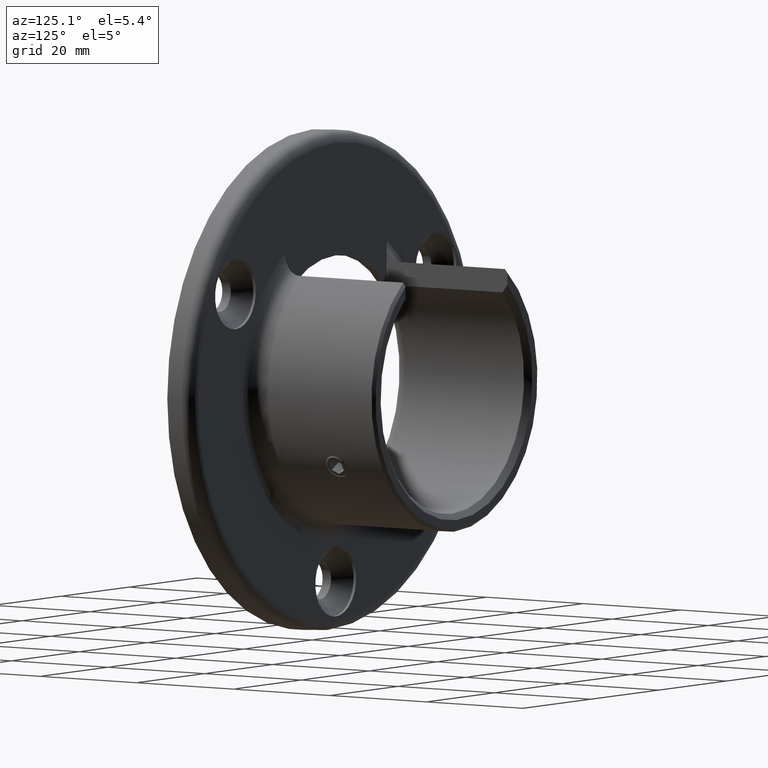
[diagram: clean part render]
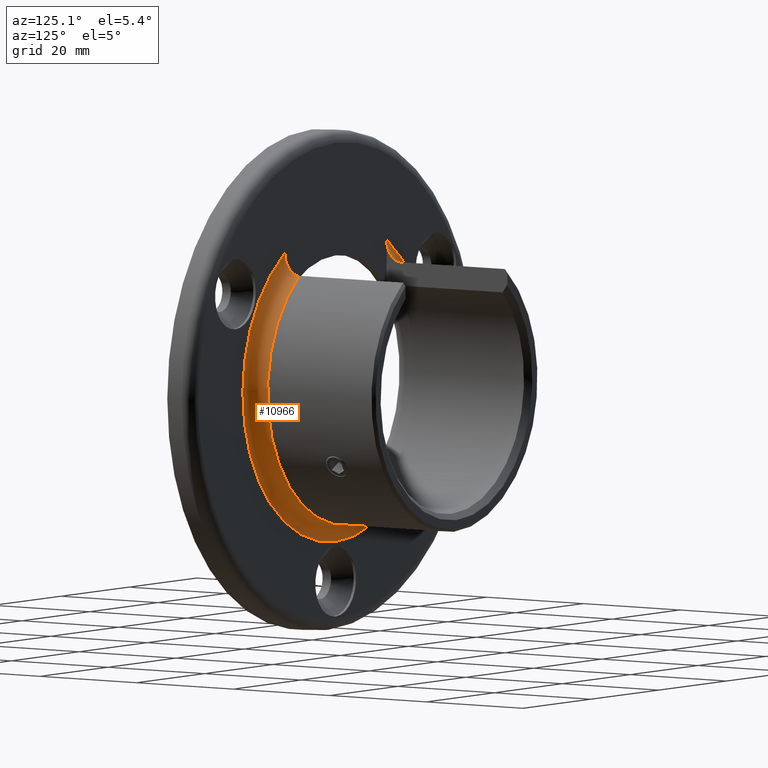
[diagram: same view with one face highlighted and labeled with its STEP entity id]
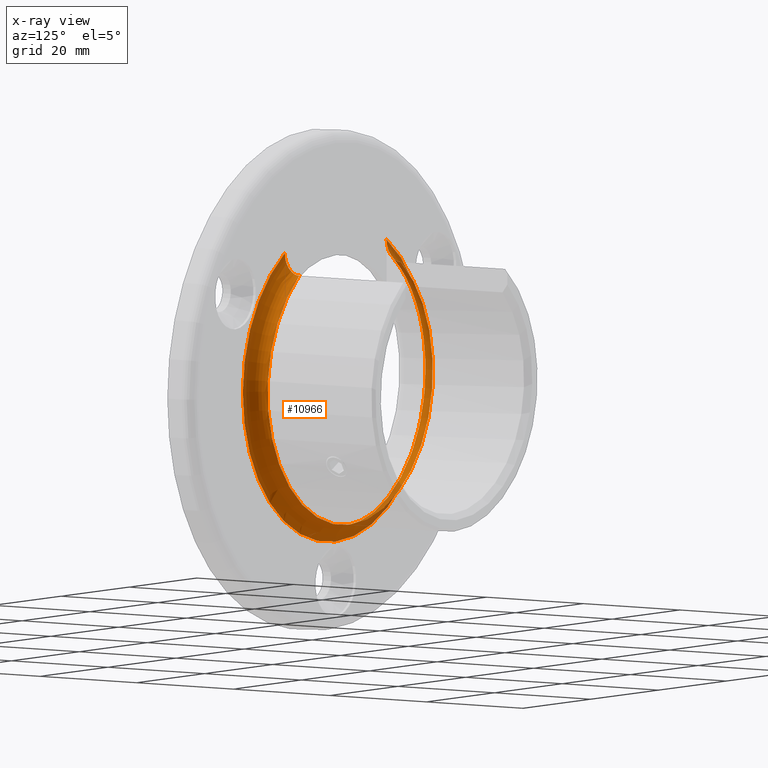
[diagram: x-ray of the same camera — body ghosted, the highlighted face saturated]
A machine part, auxiliary view. The second image highlights one B-rep face of the part: STEP entity #10966.
The next image is the same camera in x-ray: the body ghosted, the highlighted face saturated — about 4% of this face is hidden behind the body in this view.
In plain terms, the highlighted toroidal blend (fillet) surface has major radius 27.35 mm and minor (blend) radius 3 mm.
Its self-contained STEP definition (entity closure, byte-faithful):
#460 = CARTESIAN_POINT ( 'NONE',  ( 0.000000000000000000, 8.000000000000000000, 0.000000000000000000 ) ) ;
#517 = CARTESIAN_POINT ( 'NONE',  ( 15.00000000000000533, 5.908942776005998709, 20.23767699112590535 ) ) ;
#957 = AXIS2_PLACEMENT_3D ( 'NONE', #460, #2016, #2078 ) ;
#1126 = EDGE_CURVE ( 'NONE', #3291, #2345, #9439, .T. ) ;
#1522 = CARTESIAN_POINT ( 'NONE',  ( -15.00000000000000178, 5.913290123954720201, 20.23220694308438894 ) ) ;
#1622 = EDGE_CURVE ( 'NONE', #14256, #3291, #9398, .T. ) ;
#1653 = VERTEX_POINT ( 'NONE', #6714 ) ;
#2016 = DIRECTION ( 'NONE',  ( 0.000000000000000000, 1.000000000000000000, 0.000000000000000000 ) ) ;
#2017 = CIRCLE ( 'NONE', #957, 24.35000000000000142 ) ;
#2078 = DIRECTION ( 'NONE',  ( 0.000000000000000000, 0.000000000000000000, 1.000000000000000000 ) ) ;
#2275 = DIRECTION ( 'NONE',  ( 0.000000000000000000, 0.000000000000000000, 1.000000000000000000 ) ) ;
#2291 = ORIENTED_EDGE ( 'NONE', *, *, #1126, .F. ) ;
#2345 = VERTEX_POINT ( 'NONE', #18216 ) ;
#2614 = CARTESIAN_POINT ( 'NONE',  ( 15.00000000000000533, 6.935408139764223101, 19.41871214534407031 ) ) ;
#3018 = ORIENTED_EDGE ( 'NONE', *, *, #1622, .F. ) ;
#3291 = VERTEX_POINT ( 'NONE', #13782 ) ;
#3835 = CARTESIAN_POINT ( 'NONE',  ( 15.00000000000000533, 5.262238312063248102, 21.37122577652108646 ) ) ;
#4105 = CARTESIAN_POINT ( 'NONE',  ( 15.00000000000000533, 7.777729214869189889, 19.18130600350249182 ) ) ;
#5386 = CARTESIAN_POINT ( 'NONE',  ( 15.00000000000000355, 5.344779068767029351, 21.16518720974688250 ) ) ;
#5665 = CARTESIAN_POINT ( 'NONE',  ( 15.00000000000000533, 7.556587484645469033, 19.21330745783425442 ) ) ;
#6084 = EDGE_LOOP ( 'NONE', ( #2291, #3018, #19826, #14562, #13011 ) ) ;
#6399 = CARTESIAN_POINT ( 'NONE',  ( -14.99999999999999822, 6.058235944132953854, 20.06821170004443289 ) ) ;
#6700 = AXIS2_PLACEMENT_3D ( 'NONE', #7789, #17337, #7858 ) ;
#6714 = CARTESIAN_POINT ( 'NONE',  ( 0.000000000000000000, 8.000000000000000000, -24.35000000000000142 ) ) ;
#6936 = CARTESIAN_POINT ( 'NONE',  ( 15.00000000000000355, 5.651240881055695553, 20.58948036648342850 ) ) ;
#7694 = CARTESIAN_POINT ( 'NONE',  ( -14.99999999999999822, 8.000000000000000000, 19.18130600350247406 ) ) ;
#7754 = CARTESIAN_POINT ( 'NONE',  ( -14.99999999999999645, 4.999999999999999112, 22.42876404087101960 ) ) ;
#7789 = CARTESIAN_POINT ( 'NONE',  ( 0.000000000000000000, 8.000000000000000000, 0.000000000000000000 ) ) ;
#7858 = DIRECTION ( 'NONE',  ( 0.000000000000000000, 0.000000000000000000, 1.000000000000000000 ) ) ;
#7888 = CARTESIAN_POINT ( 'NONE',  ( -14.99999999999999822, 6.380260429629683649, 19.77088085092529113 ) ) ;
#8194 = CARTESIAN_POINT ( 'NONE',  ( -14.99999999999999822, 8.000000000000000000, 19.18130600350247406 ) ) ;
#8234 = CARTESIAN_POINT ( 'NONE',  ( 15.00000000000000355, 5.065915106816810898, 21.99837821047765019 ) ) ;
#8423 = EDGE_CURVE ( 'NONE', #2345, #1653, #2017, .T. ) ;
#8627 = CARTESIAN_POINT ( 'NONE',  ( 15.00000000000000355, 7.137408363741516659, 19.33176807364670680 ) ) ;
#9071 = AXIS2_PLACEMENT_3D ( 'NONE', #17226, #20180, #10804 ) ;
#9281 = VERTEX_POINT ( 'NONE', #8194 ) ;
#9398 = CIRCLE ( 'NONE', #9071, 27.34999999999999787 ) ;
#9439 = B_SPLINE_CURVE_WITH_KNOTS ( 'NONE', 3,
 ( #9796, #17787, #8234, #3835, #5386, #16263, #6936, #517, #11841, #15056, #17993, #2614, #8627, #5665, #4105, #16603 ),
 .UNSPECIFIED., .F., .F.,
 ( 4, 2, 2, 2, 2, 2, 2, 4 ),
 ( 0.000000000000000000, 0.001303902921024522937, 0.001955854381536789068, 0.002607805842049055415, 0.003259757302561322196, 0.003911708763073587676, 0.004563660223585854457, 0.005215611684098120371 ),
 .UNSPECIFIED. ) ;
#9443 = CARTESIAN_POINT ( 'NONE',  ( -15.00000000000000178, 5.344221810906043757, 21.16638659494418562 ) ) ;
#9706 = FACE_OUTER_BOUND ( 'NONE', #6084, .T. ) ;
#9796 = CARTESIAN_POINT ( 'NONE',  ( 15.00000000000000355, 5.000000000000000000, 22.86968517492096709 ) ) ;
#10265 = EDGE_CURVE ( 'NONE', #9281, #14256, #12322, .T. ) ;
#10804 = DIRECTION ( 'NONE',  ( 0.000000000000000000, 0.000000000000000000, 1.000000000000000000 ) ) ;
#10816 = CARTESIAN_POINT ( 'NONE',  ( -15.00000000000000178, 6.936442866219622694, 19.41844732755252423 ) ) ;
#10966 = ADVANCED_FACE ( 'NONE', ( #9706 ), #19500, .F. ) ;
#11020 = CARTESIAN_POINT ( 'NONE',  ( -15.00000000000000000, 5.538995652537431980, 20.77534232949345494 ) ) ;
#11565 = CARTESIAN_POINT ( 'NONE',  ( 0.000000000000000000, 8.000000000000000000, 0.000000000000000000 ) ) ;
#11841 = CARTESIAN_POINT ( 'NONE',  ( 15.00000000000000533, 6.056358760817493803, 20.07019500471366413 ) ) ;
#12322 = B_SPLINE_CURVE_WITH_KNOTS ( 'NONE', 3,
 ( #7694, #18621, #14143, #14017, #10816, #13948, #7888, #6399, #1522, #12512, #11020, #9443, #17089, #12370, #7754, #18690 ),
 .UNSPECIFIED., .F., .F.,
 ( 4, 2, 2, 2, 2, 2, 2, 4 ),
 ( 0.000000000000000000, 0.0006536704865573577392, 0.001307340973114715478, 0.001961011459672072892, 0.002614681946229430957, 0.003268352432786788588, 0.003922022919344145785, 0.005229363892458862781 ),
 .UNSPECIFIED. ) ;
#12370 = CARTESIAN_POINT ( 'NONE',  ( -14.99999999999999822, 5.065727745436814367, 21.99920328508491707 ) ) ;
#12512 = CARTESIAN_POINT ( 'NONE',  ( -14.99999999999999822, 5.652216027806162835, 20.58769376320065092 ) ) ;
#12921 = CARTESIAN_POINT ( 'NONE',  ( -15.00000000000000178, 5.000000000000000000, 22.86968517492097064 ) ) ;
#13011 = ORIENTED_EDGE ( 'NONE', *, *, #8423, .F. ) ;
#13439 = AXIS2_PLACEMENT_3D ( 'NONE', #11565, #17988, #2275 ) ;
#13782 = CARTESIAN_POINT ( 'NONE',  ( 15.00000000000000355, 5.000000000000000000, 22.86968517492096709 ) ) ;
#13948 = CARTESIAN_POINT ( 'NONE',  ( -14.99999999999999645, 6.558332134302149896, 19.63753333821145119 ) ) ;
#14017 = CARTESIAN_POINT ( 'NONE',  ( -15.00000000000000000, 7.141223459249330219, 19.33022463774020849 ) ) ;
#14143 = CARTESIAN_POINT ( 'NONE',  ( -15.00000000000000355, 7.562647981073737036, 19.21207107202707220 ) ) ;
#14256 = VERTEX_POINT ( 'NONE', #12921 ) ;
#14562 = ORIENTED_EDGE ( 'NONE', *, *, #19592, .F. ) ;
#15056 = CARTESIAN_POINT ( 'NONE',  ( 15.00000000000000355, 6.378206385147391799, 19.77253035281239590 ) ) ;
#16153 = CIRCLE ( 'NONE', #13439, 24.35000000000000142 ) ;
#16263 = CARTESIAN_POINT ( 'NONE',  ( 15.00000000000000178, 5.539029650116550130, 20.77535490648834227 ) ) ;
#16603 = CARTESIAN_POINT ( 'NONE',  ( 15.00000000000000355, 8.000000000000000000, 19.18130600350247050 ) ) ;
#17089 = CARTESIAN_POINT ( 'NONE',  ( -15.00000000000000000, 5.262038242714037750, 21.37175187465687642 ) ) ;
#17226 = CARTESIAN_POINT ( 'NONE',  ( 0.000000000000000000, 5.000000000000000000, 0.000000000000000000 ) ) ;
#17337 = DIRECTION ( 'NONE',  ( 0.000000000000000000, 1.000000000000000000, 0.000000000000000000 ) ) ;
#17787 = CARTESIAN_POINT ( 'NONE',  ( 15.00000000000000888, 5.000000000000000000, 22.42812442886998170 ) ) ;
#17988 = DIRECTION ( 'NONE',  ( 0.000000000000000000, 1.000000000000000000, 0.000000000000000000 ) ) ;
#17993 = CARTESIAN_POINT ( 'NONE',  ( 15.00000000000000178, 6.552997198166152337, 19.64096486946659326 ) ) ;
#18216 = CARTESIAN_POINT ( 'NONE',  ( 15.00000000000000355, 8.000000000000000000, 19.18130600350247050 ) ) ;
#18621 = CARTESIAN_POINT ( 'NONE',  ( -15.00000000000000000, 7.778520357590149814, 19.18130600350247406 ) ) ;
#18690 = CARTESIAN_POINT ( 'NONE',  ( -15.00000000000000178, 5.000000000000000000, 22.86968517492097064 ) ) ;
#19500 = TOROIDAL_SURFACE ( 'NONE', #6700, 27.34999999999999787, 3.000000000000000000 ) ;
#19592 = EDGE_CURVE ( 'NONE', #1653, #9281, #16153, .T. ) ;
#19826 = ORIENTED_EDGE ( 'NONE', *, *, #10265, .F. ) ;
#20180 = DIRECTION ( 'NONE',  ( -0.000000000000000000, -1.000000000000000000, -0.000000000000000000 ) ) ;